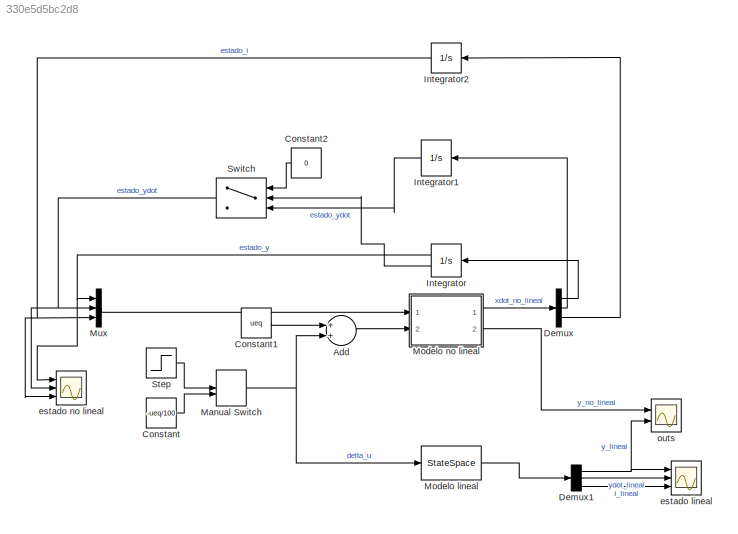
MODEL slx_330e5d5bc2d8
KIND model
CONFIG AbsTol = auto
CONFIG EnableMultiTasking = off
CONFIG FixedStep = auto
CONFIG MaxStep = auto
CONFIG MinStep = auto
CONFIG RelTol = 1e-3
CONFIG SampleTimeConstraint = Unconstrained
CONFIG Solver = VariableStepAuto
CONFIG SolverName = VariableStepAuto
CONFIG StartTime = 0.0
CONFIG StopTime = 2
BLOCK [Sum] Add
  InputSameDT = off
  OutDataTypeStr = Inherit: Inherit via internal rule
  Ports = [2, 1]
  SaturateOnIntegerOverflow = off
BLOCK [Constant] Constant
  Value = -ueq/100
  VectorParams1D = off
BLOCK [Constant] Constant1
  Value = ueq
  VectorParams1D = off
BLOCK [Constant] Constant2
  Value = 0
BLOCK [Demux] Demux
  DisplayOption = bar
  Outputs = 3
  Ports = [1, 3]
BLOCK [Demux] Demux1
  DisplayOption = bar
  Outputs = 3
  Ports = [1, 3]
BLOCK [Integrator] Integrator
  LimitOutput = on
  LowerSaturationLimit = -0.95
  Ports = [1, 2]
  ShowSaturationPort = on
  UpperSaturationLimit = .95
BLOCK [Integrator] Integrator1
  LimitOutput = on
  LowerSaturationLimit = -1e5
  Ports = [1, 1]
  UpperSaturationLimit = 1e5
BLOCK [Integrator] Integrator2
  InitialCondition = xeq(3)
  LimitOutput = on
  LowerSaturationLimit = -50
  Ports = [1, 1]
  UpperSaturationLimit = 50
BLOCK [ManualSwitch] Manual Switch
BLOCK [StateSpace] Modelo lineal
  A = A
  B = B
  C = eye(3)
  ContinuousStateAttributes = {'y', 'ydot', 'i'}
  D = zeros(3,1)
  InitialCondition = zeros(1,3)
  Ports = [1, 1]
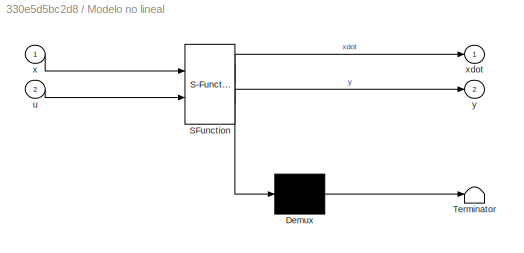
BLOCK [SubSystem] Modelo no lineal
  ErrorFcn = Stateflow.Translate.translate
  PermitHierarchicalResolution = ExplicitOnly
  Ports = [2, 2]
  RequestExecContextInheritance = off
  SFBlockType = MATLAB Function
  TreatAsAtomicUnit = on
BLOCK [Demux] Modelo no lineal/ Demux 
  Outputs = 1
  Ports = [1, 1]
BLOCK [S-Function] Modelo no lineal/ SFunction 
  EnableBusSupport = on
  FunctionName = sf_sfun
  PortCounts = [2 3]
  Ports = [2, 3]
  SFcnIsStateOwnerBlock = off
  SFunctionDeploymentMode = off
  Tag = Stateflow S-Function 2
BLOCK [Terminator] Modelo no lineal/ Terminator 
BLOCK [Inport] Modelo no lineal/u
  IconDisplay = Port number
  Port = 2
BLOCK [Inport] Modelo no lineal/x
  IconDisplay = Port number
BLOCK [Outport] Modelo no lineal/xdot
  IconDisplay = Port number
BLOCK [Outport] Modelo no lineal/y
  IconDisplay = Port number
  Port = 2
BLOCK [Mux] Mux
  DisplayOption = bar
  Inputs = 3
  Ports = [3, 1]
BLOCK [Step] Step
  After = ueq/50
  SampleTime = 0
  Time = 0.5
BLOCK [Switch] Switch
  Criteria = u2 ~= 0
  InputSameDT = off
  SaturateOnIntegerOverflow = off
BLOCK [Scope] estado lineal 
  Floating = off
  NumInputPorts = 3
  Ports = [3]
  ScopeSpecificationString = Simulink.scopes.TimeScopeBlockCfg('CurrentConfiguration', extmgr.ConfigurationSet(extmgr.Configuration('Core','General UI',true),extmgr.Configuration('Core','Source UI',true),extmgr.Configuration('Sources','WiredSimulink',true,'DataLoggingVariableName','lineal','DataLogging',true),extmgr.Configuration('Visuals','Time Domain',true,'SerializedDisplays',{struct('MinYLimReal','-0.98701','MaxYLimReal',...<+2774ch>
BLOCK [Scope] estado no lineal
  Floating = off
  NumInputPorts = 3
  Ports = [3]
  ScopeSpecificationString = Simulink.scopes.TimeScopeBlockCfg('CurrentConfiguration', extmgr.ConfigurationSet(extmgr.Configuration('Core','General UI',true),extmgr.Configuration('Core','Source UI',true),extmgr.Configuration('Sources','WiredSimulink',true,'DataLoggingVariableName','no_lineal','DataLogging',true),extmgr.Configuration('Visuals','Time Domain',true,'SerializedDisplays',{struct('MinYLimReal','-0.11875','MaxYLimRea...<+2797ch>
BLOCK [Scope] outs
  Floating = off
  NumInputPorts = 2
  Ports = [2]
  ScopeSpecificationString = Simulink.scopes.TimeScopeBlockCfg('CurrentConfiguration', extmgr.ConfigurationSet(extmgr.Configuration('Core','General UI',true),extmgr.Configuration('Core','Source UI',true),extmgr.Configuration('Sources','WiredSimulink',true),extmgr.Configuration('Visuals','Time Domain',true,'SerializedDisplays',{struct('MinYLimReal','-0.11875','MaxYLimReal','1.06875','YLabelReal','','MinYLimMag','0.00000','MaxY...<+2098ch>
LINE Add:1 -> Modelo no lineal:2
LINE Constant1:1 -> Add:1
LINE Constant2:1 -> Switch:1
LINE Constant:1 -> Manual Switch:2
NET Demux1:1 -> estado lineal :1, outs:2
LINE Demux1:2 -> estado lineal :2
LINE Demux1:3 -> estado lineal :3
LINE Demux:1 -> Integrator:1
LINE Demux:2 -> Integrator1:1
LINE Demux:3 -> Integrator2:1
LINE Integrator1:1 -> Switch:3
NET Integrator2:1 -> Mux:3, estado no lineal:3
NET Integrator:1 -> Mux:1, estado no lineal:1
LINE Integrator:2 -> Switch:2
NET Manual Switch:1 -> Add:2, Modelo lineal:1
LINE Modelo lineal:1 -> Demux1:1
LINE Modelo no lineal:1 -> Demux:1
LINE Modelo no lineal:2 -> outs:1
LINE Mux:1 -> Modelo no lineal:1
LINE Step:1 -> Manual Switch:1
NET Switch:1 -> Mux:2, estado no lineal:2
note: NET lines group one-source signal fan-out (src -> all destinations, sorted); 1:1 wires keep LINE
CHART Modelo no lineal states=1 transitions=1
  STATE_LABEL 'eML_blk_kernel()'
  STATE_LABEL 'SCRIPT:\nfunction [xdot,y] = nolineal(x, u)\n    xdot1 = x(2);\n    xdot2 = (5*(x(3) + 2)^2)/(2*(x(1) - 1)^2) - (5*(x(3)  - 2)^2)/(2*(x(1) + 1)^2) - 10; \n    xdot3 = - 4*x(3)^2 + u;\n\n    xdot = [xdot1; xdot2; xdot3];\n    y = x(1);\nend\n\n'
